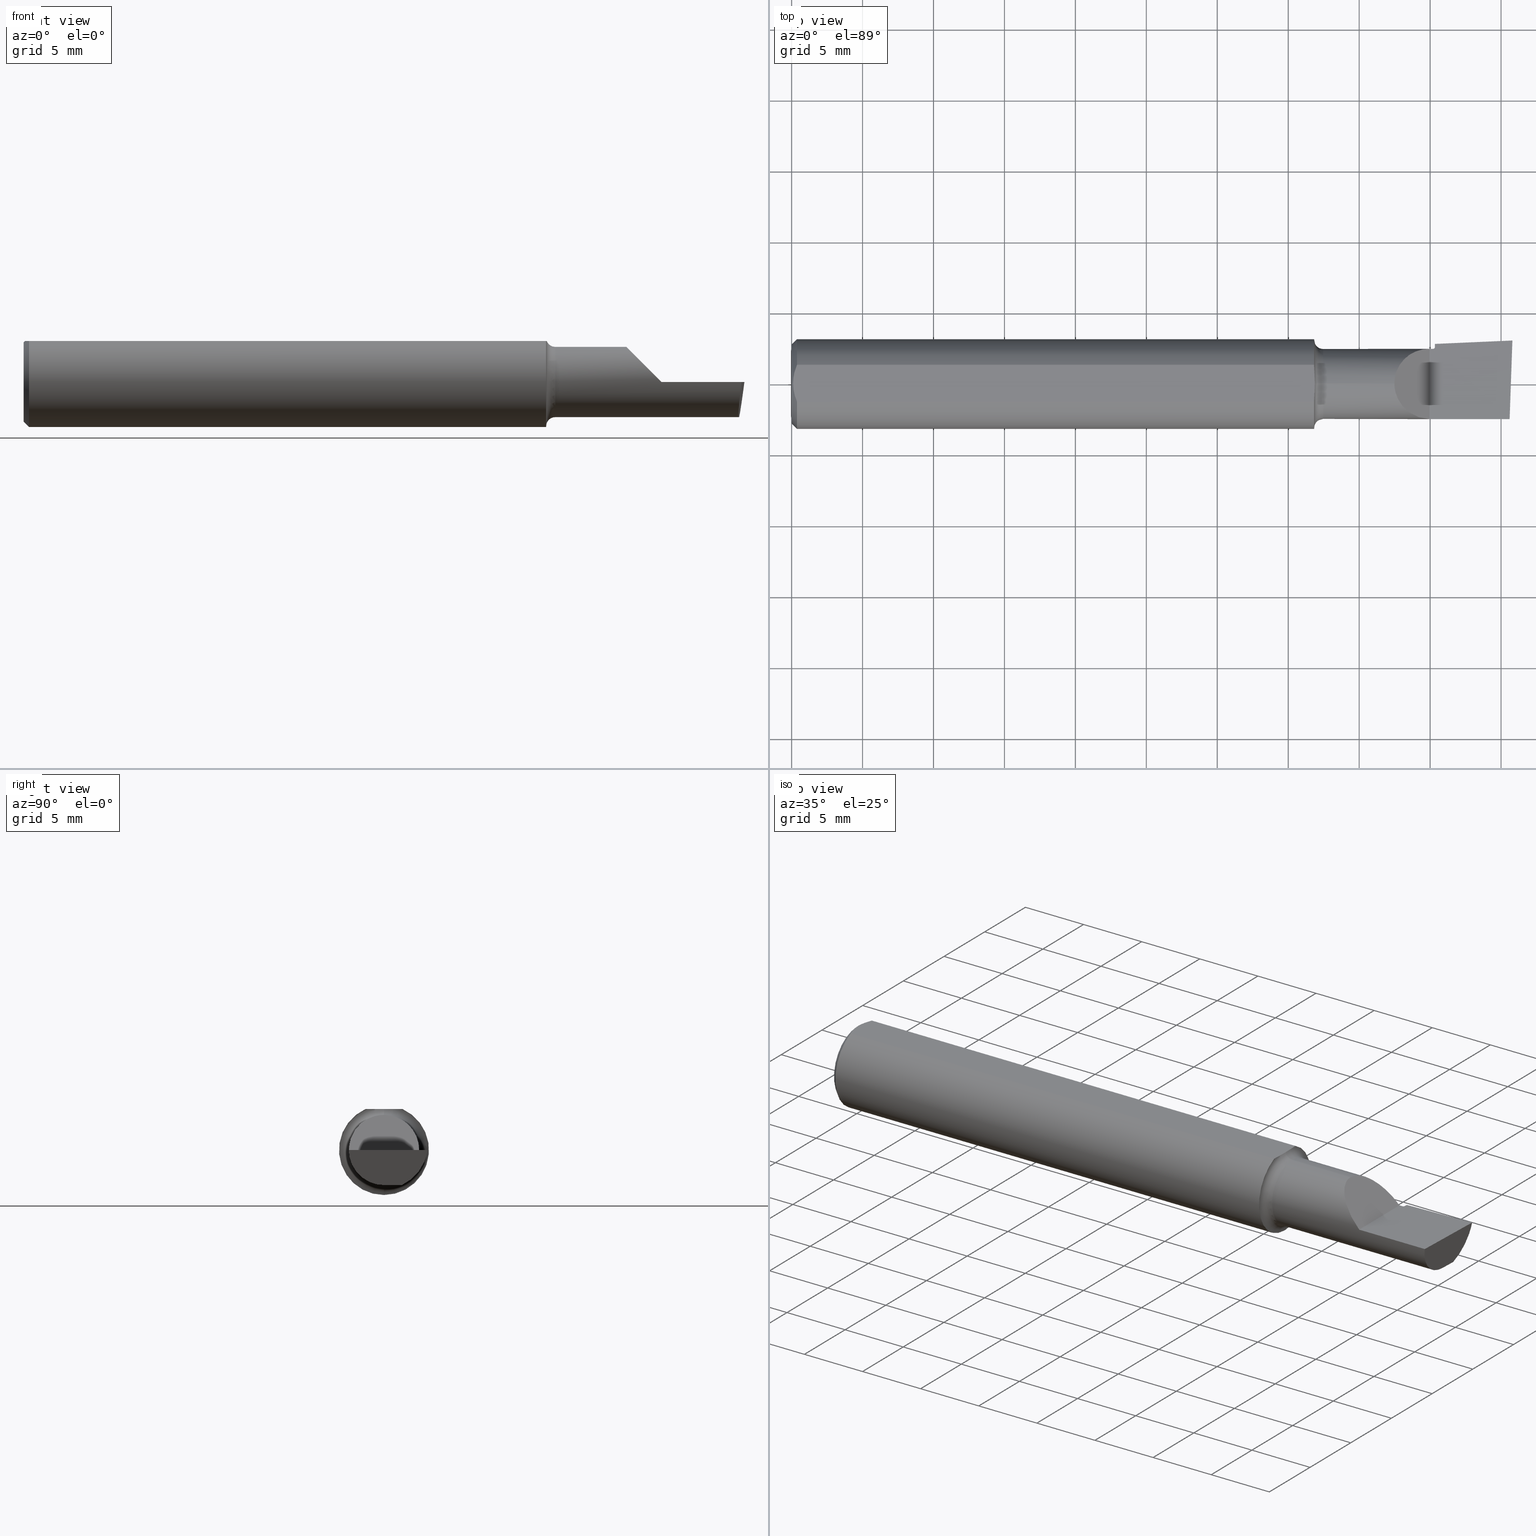
[diagram: canonical four-view strip — front | top / right | iso, engineering-drawing reading convention]
A machine part, canonical four-view strip (front | top / right | iso — engineering-drawing reading convention). The complete STEP part file that produces these views, byte-faithful:
ISO-10303-21;
HEADER;
FILE_DESCRIPTION (( 'STEP AP203' ),
    '1' );
FILE_NAME ('210264-BB224.STEP',
    '2024-04-17T22:28:02',
    ( '' ),
    ( '' ),
    'SwSTEP 2.0',
    'SolidWorks 2022',
    '' );
FILE_SCHEMA (( 'CONFIG_CONTROL_DESIGN' ));
ENDSEC;

DATA;
#1 = CARTESIAN_POINT ( 'NONE',  ( 1.981736911837515880, -0.05711417766862269402, -0.09750000000000021150 ) ) ;
#2 = DIMENSIONAL_EXPONENTS ( 1.000000000000000000, 0.000000000000000000, 0.000000000000000000, 0.000000000000000000, 0.000000000000000000, 0.000000000000000000, 0.000000000000000000 ) ;
#3 = ORIENTED_EDGE ( 'NONE', *, *, #495, .F. ) ;
#4 = CARTESIAN_POINT ( 'NONE',  ( 1.450000000000000178, 0.05124158467494929065, 0.1138500000000000068 ) ) ;
#5 = CARTESIAN_POINT ( 'NONE',  ( 3.021633225635175904E-31, 0.09750000000000000333, -7.773844898935373068E-16 ) ) ;
#6 = EDGE_CURVE ( 'NONE', #508, #244, #384, .T. ) ;
#7 = DIRECTION ( 'NONE',  ( 0.000000000000000000, -1.224646799147352714E-16, 1.000000000000000000 ) ) ;
#8 = LINE ( 'NONE', #392, #203 ) ;
#9 = AXIS2_PLACEMENT_3D ( 'NONE', #593, #106, #290 ) ;
#10 = CARTESIAN_POINT ( 'NONE',  ( 0.01500000000000161621, 0.000000000000000000, -0.1248500000000000026 ) ) ;
#11 = ORIENTED_EDGE ( 'NONE', *, *, #80, .T. ) ;
#12 = FACE_OUTER_BOUND ( 'NONE', #483, .T. ) ;
#13 = CARTESIAN_POINT ( 'NONE',  ( 1.865109836723367387, 0.1146629148157311123, -5.243076038523058513E-17 ) ) ;
#14 = EDGE_CURVE ( 'NONE', #297, #116, #494, .T. ) ;
#15 = CARTESIAN_POINT ( 'NONE',  ( 1.450000000000000178, 0.1225000000000000117, 0.000000000000000000 ) ) ;
#16 = PLANE ( 'NONE',  #110 ) ;
#17 = CIRCLE ( 'NONE', #430, 0.1225000000000000117 ) ;
#18 = CARTESIAN_POINT ( 'NONE',  ( 1.672500000000000320, -0.05711417766862324219, 0.09750000000000003109 ) ) ;
#19 = CARTESIAN_POINT ( 'NONE',  ( 1.951855142725193559, 0.04607182581063735960, -0.09749999999999994782 ) ) ;
#20 = EDGE_CURVE ( 'NONE', #92, #306, #8, .T. ) ;
#21 = CARTESIAN_POINT ( 'NONE',  ( 1.450000000000000178, -0.04521534584629426090, 0.1138500000000000068 ) ) ;
#22 = CARTESIAN_POINT ( 'NONE',  ( 1.450000000000000178, 0.05124158467494929065, 0.1138500000000000068 ) ) ;
#23 = VERTEX_POINT ( 'NONE', #61 ) ;
#24 = LINE ( 'NONE', #212, #438 ) ;
#25 = ORIENTED_EDGE ( 'NONE', *, *, #540, .F. ) ;
#26 = EDGE_CURVE ( 'NONE', #38, #23, #576, .T. ) ;
#27 = AXIS2_PLACEMENT_3D ( 'NONE', #15, #56, #397 ) ;
#28 = CARTESIAN_POINT ( 'NONE',  ( 1.985488503347493827, 0.04951655424516975684, -0.09749999999999996170 ) ) ;
#29 = ORIENTED_EDGE ( 'NONE', *, *, #6, .F. ) ;
#30 = LINE ( 'NONE', #261, #334 ) ;
#31 = CARTESIAN_POINT ( 'NONE',  ( 2.000000000000000444, 0.000000000000000000, 0.000000000000000000 ) ) ;
#32 = EDGE_CURVE ( 'NONE', #83, #141, #539, .T. ) ;
#33 = PERSON_AND_ORGANIZATION ( #168, #418 ) ;
#34 = DIRECTION ( 'NONE',  ( 0.000000000000000000, 0.000000000000000000, -1.000000000000000000 ) ) ;
#35 = APPROVAL_ROLE ( '' ) ;
#36 = CARTESIAN_POINT ( 'NONE',  ( 0.000000000000000000, 0.000000000000000000, -0.1098499999999982546 ) ) ;
#37 = AXIS2_PLACEMENT_3D ( 'NONE', #506, #257, #552 ) ;
#38 = VERTEX_POINT ( 'NONE', #585 ) ;
#39 = CC_DESIGN_PERSON_AND_ORGANIZATION_ASSIGNMENT ( #173, #414, ( #58 ) ) ;
#40 = APPROVAL_DATE_TIME ( #277, #259 ) ;
#41 = DIRECTION ( 'NONE',  ( 1.000000000000000000, -0.000000000000000000, -0.000000000000000000 ) ) ;
#42 = ORIENTED_EDGE ( 'NONE', *, *, #47, .F. ) ;
#43 = PERSON_AND_ORGANIZATION ( #168, #418 ) ;
#44 = CARTESIAN_POINT ( 'NONE',  ( 0.000000000000000000, 0.05124158467494929065, 0.1138500000000000068 ) ) ;
#45 = VERTEX_POINT ( 'NONE', #112 ) ;
#46 = APPLICATION_PROTOCOL_DEFINITION ( 'international standard', 'config_control_design', 1994, #230 ) ;
#47 = EDGE_CURVE ( 'NONE', #220, #237, #435, .T. ) ;
#48 = ORIENTED_EDGE ( 'NONE', *, *, #204, .T. ) ;
#49 = AXIS2_PLACEMENT_3D ( 'NONE', #315, #370, #73 ) ;
#50 = AXIS2_PLACEMENT_3D ( 'NONE', #343, #240, #99 ) ;
#51 = CARTESIAN_POINT ( 'NONE',  ( 1.780000000000000027, 3.722989503933402437E-16, -0.09749999999999996170 ) ) ;
#52 = ORIENTED_EDGE ( 'NONE', *, *, #155, .F. ) ;
#53 = EDGE_CURVE ( 'NONE', #574, #428, #151, .T. ) ;
#54 = CARTESIAN_POINT ( 'NONE',  ( 1.784431908937426536, 0.02303973337386209727, -0.09749999999999996170 ) ) ;
#55 = VERTEX_POINT ( 'NONE', #388 ) ;
#56 = DIRECTION ( 'NONE',  ( 1.000000000000000000, 0.000000000000000000, 0.000000000000000000 ) ) ;
#57 = CARTESIAN_POINT ( 'NONE',  ( 1.793453857359137649, 0.1115079347444489777, -8.028288386817234316E-17 ) ) ;
#58 = PRODUCT_DEFINITION ( 'UNKNOWN', '', #117, #74 ) ;
#59 = AXIS2_PLACEMENT_3D ( 'NONE', #462, #410, #82 ) ;
#60 = CARTESIAN_POINT ( 'NONE',  ( 0.000000000000000000, 0.000000000000000000, 0.000000000000000000 ) ) ;
#61 = CARTESIAN_POINT ( 'NONE',  ( 0.004000000000001717460, 1.393792698067675767E-17, 0.1138500000000000068 ) ) ;
#62 = CARTESIAN_POINT ( 'NONE',  ( 1.474999999999999867, 0.000000000000000000, 0.000000000000000000 ) ) ;
#63 = ORIENTED_EDGE ( 'NONE', *, *, #368, .F. ) ;
#64 = CARTESIAN_POINT ( 'NONE',  ( 1.450000000000000178, 0.03767470274412997727, 0.1138499999999999790 ) ) ;
#65 = CARTESIAN_POINT ( 'NONE',  ( 1.474999999999999867, 0.000000000000000000, 0.09750000000000000333 ) ) ;
#66 = ADVANCED_FACE ( 'NONE', ( #349 ), #16, .F. ) ;
#67 = AXIS2_PLACEMENT_3D ( 'NONE', #455, #262, #360 ) ;
#68 = VECTOR ( 'NONE', #529, 39.37007874015748143 ) ;
#69 = CARTESIAN_POINT ( 'NONE',  ( 1.451544137193443662, 0.000000000000000000, 0.1138500000000000068 ) ) ;
#70 = CARTESIAN_POINT ( 'NONE',  ( 1.451544137193443662, 0.000000000000000000, 0.1138500000000000068 ) ) ;
#71 = ADVANCED_FACE ( 'NONE', ( #202 ), #81, .T. ) ;
#72 = DIRECTION ( 'NONE',  ( 1.000000000000000000, 0.000000000000000000, 0.000000000000000000 ) ) ;
#73 = DIRECTION ( 'NONE',  ( 0.000000000000000000, 0.000000000000000000, -1.000000000000000000 ) ) ;
#74 = DESIGN_CONTEXT ( 'detailed design', #230, 'design' ) ;
#75 = ADVANCED_FACE ( 'NONE', ( #531 ), #208, .T. ) ;
#76 = CARTESIAN_POINT ( 'NONE',  ( 1.672500000000000764, 0.000000000000000000, 0.09750000000000000333 ) ) ;
#77 = CARTESIAN_POINT ( 'NONE',  ( 1.770000000000000240, -0.09749999999999971190, -8.939921633775677106E-17 ) ) ;
#78 = ORIENTED_EDGE ( 'NONE', *, *, #411, .T. ) ;
#79 = TOROIDAL_SURFACE ( 'NONE', #59, 0.1225000000000000117, 0.02499999999999993894 ) ;
#80 = EDGE_CURVE ( 'NONE', #45, #508, #322, .T. ) ;
#81 = CONICAL_SURFACE ( 'NONE', #289, 0.1248500000000000026, 0.7853981633974528309 ) ;
#82 = DIRECTION ( 'NONE',  ( 0.000000000000000000, 0.000000000000000000, 1.000000000000000000 ) ) ;
#83 = VERTEX_POINT ( 'NONE', #125 ) ;
#84 = DATE_AND_TIME ( #323, #582 ) ;
#85 = CARTESIAN_POINT ( 'NONE',  ( 0.01500000000000161621, 0.000000000000000000, 0.000000000000000000 ) ) ;
#86 = PERSON_AND_ORGANIZATION_ROLE ( 'design_owner' ) ;
#87 = PLANE ( 'NONE',  #383 ) ;
#88 = EDGE_CURVE ( 'NONE', #189, #534, #17, .T. ) ;
#89 = ORIENTED_EDGE ( 'NONE', *, *, #470, .F. ) ;
#90 = APPROVAL_DATE_TIME ( #139, #307 ) ;
#91 = CC_DESIGN_APPROVAL ( #259, ( #117 ) ) ;
#92 = VERTEX_POINT ( 'NONE', #318 ) ;
#93 = LOCAL_TIME ( 15, 28, 2.000000000000000000, #572 ) ;
#94 = DATE_AND_TIME ( #471, #194 ) ;
#95 = CARTESIAN_POINT ( 'NONE',  ( 1.992294917929013254, -0.09750000000000000333, -7.773844898935373068E-16 ) ) ;
#96 = ORIENTED_EDGE ( 'NONE', *, *, #137, .F. ) ;
#97 = DIRECTION ( 'NONE',  ( 0.000000000000000000, 0.000000000000000000, -1.000000000000000000 ) ) ;
#98 = ORIENTED_EDGE ( 'NONE', *, *, #276, .T. ) ;
#99 = DIRECTION ( 'NONE',  ( -1.000000000000000000, 0.000000000000000000, -3.886922449467621453E-16 ) ) ;
#100 = EDGE_CURVE ( 'NONE', #511, #237, #254, .T. ) ;
#101 = EDGE_LOOP ( 'NONE', ( #182, #354, #3, #443, #217, #536 ) ) ;
#102 = VECTOR ( 'NONE', #607, 39.37007874015748143 ) ;
#103 = VECTOR ( 'NONE', #358, 39.37007874015748143 ) ;
#104 = CARTESIAN_POINT ( 'NONE',  ( 1.450000000000000178, -0.04521534584629426090, 0.1138500000000000068 ) ) ;
#105 = CARTESIAN_POINT ( 'NONE',  ( 0.01167165678009124061, 0.04313208428301595898, 0.1138500000000000068 ) ) ;
#106 = DIRECTION ( 'NONE',  ( 1.000000000000000000, 1.216526059678616922E-16, -0.000000000000000000 ) ) ;
#107 = ORIENTED_EDGE ( 'NONE', *, *, #550, .F. ) ;
#108 = CARTESIAN_POINT ( 'NONE',  ( 1.780000000000000027, 0.09750000000000000333, -7.773844898935373068E-16 ) ) ;
#109 = CARTESIAN_POINT ( 'NONE',  ( -3.937007874019685528E-05, 3.670920741486353638E-16, -0.09749999999999996170 ) ) ;
#110 = AXIS2_PLACEMENT_3D ( 'NONE', #109, #300, #490 ) ;
#111 = CARTESIAN_POINT ( 'NONE',  ( 1.785000000000055209, 0.06762837049655040511, -0.07668285397018434479 ) ) ;
#112 = CARTESIAN_POINT ( 'NONE',  ( 1.985488503347493827, 0.04951655424516975684, -0.09749999999999996170 ) ) ;
#113 = DIRECTION ( 'NONE',  ( 1.000000000000000000, 1.790984261580658209E-17, -1.886503422198224724E-16 ) ) ;
#114 = DIRECTION ( 'NONE',  ( 0.000000000000000000, 0.000000000000000000, 1.000000000000000000 ) ) ;
#115 = CARTESIAN_POINT ( 'NONE',  ( 1.785000000000000142, 0.1025000000000000633, -8.356883266355525457E-17 ) ) ;
#116 = VERTEX_POINT ( 'NONE', #65 ) ;
#117 = PRODUCT_DEFINITION_FORMATION_WITH_SPECIFIED_SOURCE ( 'ANY', '', #320, .NOT_KNOWN. ) ;
#118 = CIRCLE ( 'NONE', #611, 0.1248500000000000026 ) ;
#119 = CARTESIAN_POINT ( 'NONE',  ( 1.451544137193443662, 0.003725360303307010627, 0.1138500000000000068 ) ) ;
#120 = CARTESIAN_POINT ( 'NONE',  ( 0.01500000000000161621, 1.528971528735470422E-17, 0.1248500000000000026 ) ) ;
#121 = ORIENTED_EDGE ( 'NONE', *, *, #411, .F. ) ;
#122 = LINE ( 'NONE', #120, #102 ) ;
#123 = ORIENTED_EDGE ( 'NONE', *, *, #20, .T. ) ;
#124 = ADVANCED_FACE ( 'NONE', ( #161 ), #79, .F. ) ;
#125 = CARTESIAN_POINT ( 'NONE',  ( 1.992294917929013254, -0.09750000000000000333, -7.773844898935373068E-16 ) ) ;
#126 = AXIS2_PLACEMENT_3D ( 'NONE', #60, #535, #444 ) ;
#127 = APPROVAL_PERSON_ORGANIZATION ( #609, #485, #382 ) ;
#128 = CARTESIAN_POINT ( 'NONE',  ( 1.784431908937426536, 0.02303973337386209727, -0.09749999999999996170 ) ) ;
#129 = DIRECTION ( 'NONE',  ( 0.000000000000000000, -1.000000000000000000, 0.000000000000000000 ) ) ;
#130 = VERTEX_POINT ( 'NONE', #459 ) ;
#131 = COORDINATED_UNIVERSAL_TIME_OFFSET ( 8, 0, .BEHIND. ) ;
#132 = DIRECTION ( 'NONE',  ( -1.000000000000000000, -0.000000000000000000, -0.000000000000000000 ) ) ;
#133 = ORIENTED_EDGE ( 'NONE', *, *, #605, .T. ) ;
#134 = APPROVAL_STATUS ( 'not_yet_approved' ) ;
#135 = CARTESIAN_POINT ( 'NONE',  ( 0.01168357029558645885, -0.04316111153536574679, 0.1138500000000000068 ) ) ;
#136 = AXIS2_PLACEMENT_3D ( 'NONE', #538, #579, #145 ) ;
#137 = EDGE_CURVE ( 'NONE', #378, #189, #266, .T. ) ;
#138 = AXIS2_PLACEMENT_3D ( 'NONE', #491, #489, #152 ) ;
#139 = DATE_AND_TIME ( #518, #205 ) ;
#140 = CARTESIAN_POINT ( 'NONE',  ( 1.785000000000000142, 0.1111356925928525391, -8.323599355695802456E-17 ) ) ;
#141 = VERTEX_POINT ( 'NONE', #77 ) ;
#142 = EDGE_CURVE ( 'NONE', #130, #23, #122, .T. ) ;
#143 = DIRECTION ( 'NONE',  ( 1.000000000000000000, -0.000000000000000000, -0.000000000000000000 ) ) ;
#144 = EDGE_LOOP ( 'NONE', ( #616, #319, #179, #453, #89 ) ) ;
#145 = DIRECTION ( 'NONE',  ( 0.000000000000000000, 0.000000000000000000, 1.000000000000000000 ) ) ;
#146 = DIRECTION ( 'NONE',  ( 1.000000000000000000, -0.000000000000000000, -0.000000000000000000 ) ) ;
#147 = CLOSED_SHELL ( 'NONE', ( #75, #450, #71, #556, #324, #187, #246, #584, #252, #124, #433, #269, #530, #66, #295, #223, #350 ) ) ;
#148 = DIRECTION ( 'NONE',  ( -0.7071067811865461294, 0.000000000000000000, 0.7071067811865487940 ) ) ;
#149 = CARTESIAN_POINT ( 'NONE',  ( 1.789226928511898240, 0.1113218174764034063, -8.192585833103609722E-17 ) ) ;
#150 = LINE ( 'NONE', #247, #163 ) ;
#151 = LINE ( 'NONE', #5, #333 ) ;
#152 = DIRECTION ( 'NONE',  ( 0.000000000000000000, 0.000000000000000000, 1.000000000000000000 ) ) ;
#153 = CARTESIAN_POINT ( 'NONE',  ( 0.01500000000000161621, 0.05124158467494929065, 0.1138500000000000068 ) ) ;
#154 = B_SPLINE_CURVE_WITH_KNOTS ( 'NONE', 3,
 ( #128, #544, #500, #403, #206, #549, #19, #312 ),
 .UNSPECIFIED., .F., .F.,
 ( 4, 2, 2, 4 ),
 ( 0.01279290492919137219, 0.01409157974680893578, 0.01539025456442649764, 0.01798760419966162483 ),
 .UNSPECIFIED. ) ;
#155 = EDGE_CURVE ( 'NONE', #574, #141, #271, .T. ) ;
#156 = CIRCLE ( 'NONE', #138, 0.09750000000000000333 ) ;
#157 = CARTESIAN_POINT ( 'NONE',  ( 0.01500000000000161621, 0.000000000000000000, 0.000000000000000000 ) ) ;
#158 = CARTESIAN_POINT ( 'NONE',  ( 1.450000000000000178, 0.04521534584629426090, 0.1138500000000000068 ) ) ;
#159 = DIRECTION ( 'NONE',  ( 0.000000000000000000, -1.000000000000000000, 0.000000000000000000 ) ) ;
#160 = DIRECTION ( 'NONE',  ( 0.000000000000000000, 0.000000000000000000, -1.000000000000000000 ) ) ;
#161 = FACE_OUTER_BOUND ( 'NONE', #304, .T. ) ;
#162 = VERTEX_POINT ( 'NONE', #115 ) ;
#163 = VECTOR ( 'NONE', #293, 39.37007874015748143 ) ;
#164 = CC_DESIGN_APPROVAL ( #307, ( #546 ) ) ;
#165 = CARTESIAN_POINT ( 'NONE',  ( 1.451217750162281162, 0.01507525941000600889, 0.1138500000000000068 ) ) ;
#166 = FACE_OUTER_BOUND ( 'NONE', #542, .T. ) ;
#167 = ORIENTED_EDGE ( 'NONE', *, *, #458, .T. ) ;
#168 = PERSON ( 'UNSPECIFIED', 'UNSPECIFIED', 'UNSPECIFIED', ('UNSPECIFIED'), ('UNSPECIFIED'), ('UNSPECIFIED') ) ;
#169 =( NAMED_UNIT ( * ) SI_UNIT ( $, .STERADIAN. ) SOLID_ANGLE_UNIT ( ) );
#170 = CARTESIAN_POINT ( 'NONE',  ( 1.770000000000000240, 1.220000000000000195, -8.939921633775677106E-17 ) ) ;
#171 = DIRECTION ( 'NONE',  ( 0.000000000000000000, 0.000000000000000000, 1.000000000000000000 ) ) ;
#172 = DIRECTION ( 'NONE',  ( -0.000000000000000000, -1.000000000000000000, -0.000000000000000000 ) ) ;
#173 = PERSON_AND_ORGANIZATION ( #168, #418 ) ;
#174 = AXIS2_PLACEMENT_3D ( 'NONE', #282, #143, #468 ) ;
#175 = CARTESIAN_POINT ( 'NONE',  ( 0.000000000000000000, 0.000000000000000000, 0.000000000000000000 ) ) ;
#176 = ORIENTED_EDGE ( 'NONE', *, *, #232, .T. ) ;
#177 = CARTESIAN_POINT ( 'NONE',  ( 1.672500000000000764, 0.000000000000000000, 0.09750000000000000333 ) ) ;
#178 = EDGE_CURVE ( 'NONE', #316, #162, #497, .T. ) ;
#179 = ORIENTED_EDGE ( 'NONE', *, *, #26, .F. ) ;
#180 = PRODUCT_DEFINITION_SHAPE ( 'NONE', 'NONE',  #58 ) ;
#181 = CARTESIAN_POINT ( 'NONE',  ( 0.004000000000001641999, -0.008823500054840109630, 0.1138500000000000068 ) ) ;
#182 = ORIENTED_EDGE ( 'NONE', *, *, #426, .T. ) ;
#183 = CALENDAR_DATE ( 2024, 17, 4 ) ;
#184 = DIRECTION ( 'NONE',  ( 1.000000000000000000, -0.000000000000000000, -0.000000000000000000 ) ) ;
#185 = CIRCLE ( 'NONE', #214, 0.1248500000000000026 ) ;
#186 = ORIENTED_EDGE ( 'NONE', *, *, #340, .T. ) ;
#187 = ADVANCED_FACE ( 'NONE', ( #366 ), #325, .T. ) ;
#188 = CARTESIAN_POINT ( 'NONE',  ( 0.000000000000000000, 0.05124158467494929065, 0.1138500000000000068 ) ) ;
#189 = VERTEX_POINT ( 'NONE', #219 ) ;
#190 = FACE_OUTER_BOUND ( 'NONE', #336, .T. ) ;
#191 = VERTEX_POINT ( 'NONE', #70 ) ;
#192 = CC_DESIGN_PERSON_AND_ORGANIZATION_ASSIGNMENT ( #221, #86, ( #320 ) ) ;
#193 = CARTESIAN_POINT ( 'NONE',  ( 1.780000000000000027, 0.000000000000000000, 0.000000000000000000 ) ) ;
#194 = LOCAL_TIME ( 15, 28, 2.000000000000000000, #419 ) ;
#195 = ORIENTED_EDGE ( 'NONE', *, *, #361, .T. ) ;
#196 = AXIS2_PLACEMENT_3D ( 'NONE', #284, #171, #618 ) ;
#197 = CARTESIAN_POINT ( 'NONE',  ( 1.781727325597548317, 0.007627962907832559411, -0.09749999999999998945 ) ) ;
#198 = CARTESIAN_POINT ( 'NONE',  ( 0.005042108978870534983, 0.01754746848146375438, 0.1138499999999999790 ) ) ;
#199 = DIRECTION ( 'NONE',  ( -1.000000000000000000, -0.000000000000000000, -0.000000000000000000 ) ) ;
#200 = EDGE_CURVE ( 'NONE', #130, #286, #558, .T. ) ;
#201 = ORIENTED_EDGE ( 'NONE', *, *, #340, .F. ) ;
#202 = FACE_OUTER_BOUND ( 'NONE', #144, .T. ) ;
#203 = VECTOR ( 'NONE', #113, 39.37007874015748143 ) ;
#204 = EDGE_CURVE ( 'NONE', #55, #45, #154, .T. ) ;
#205 = LOCAL_TIME ( 15, 28, 2.000000000000000000, #523 ) ;
#206 = CARTESIAN_POINT ( 'NONE',  ( 1.867915088960057979, 0.03604975157657223928, -0.09749999999999996170 ) ) ;
#207 = DIRECTION ( 'NONE',  ( -1.000000000000000000, 0.000000000000000000, -0.000000000000000000 ) ) ;
#208 = CYLINDRICAL_SURFACE ( 'NONE', #37, 0.09750000000000000333 ) ;
#209 = ORIENTED_EDGE ( 'NONE', *, *, #368, .T. ) ;
#210 = EDGE_CURVE ( 'NONE', #83, #508, #24, .T. ) ;
#211 = B_SPLINE_CURVE_WITH_KNOTS ( 'NONE', 3,
 ( #442, #111, #439, #299, #588, #54 ),
 .UNSPECIFIED., .F., .F.,
 ( 4, 2, 4 ),
 ( 0.001235810349963047854, 0.001994775500586429794, 0.002753740651209811516 ),
 .UNSPECIFIED. ) ;
#212 = CARTESIAN_POINT ( 'NONE',  ( 2.038600769162305593, 1.218641908244754601, 1.500381962236843253E-17 ) ) ;
#213 = ORIENTED_EDGE ( 'NONE', *, *, #477, .F. ) ;
#214 = AXIS2_PLACEMENT_3D ( 'NONE', #222, #274, #610 ) ;
#215 = FACE_OUTER_BOUND ( 'NONE', #612, .T. ) ;
#216 = CARTESIAN_POINT ( 'NONE',  ( 1.450000000000000178, 0.05124158467494929065, 0.1138500000000000068 ) ) ;
#217 = ORIENTED_EDGE ( 'NONE', *, *, #242, .T. ) ;
#218 = LENGTH_MEASURE_WITH_UNIT ( LENGTH_MEASURE( 0.02539999999999999897 ), #493 );
#219 = CARTESIAN_POINT ( 'NONE',  ( 1.450000000000000178, 0.04521534584629426090, 0.1138500000000000068 ) ) ;
#220 = VERTEX_POINT ( 'NONE', #601 ) ;
#221 = PERSON_AND_ORGANIZATION ( #168, #418 ) ;
#222 = CARTESIAN_POINT ( 'NONE',  ( 1.450000000000000178, 0.000000000000000000, 0.000000000000000000 ) ) ;
#223 = ADVANCED_FACE ( 'NONE', ( #166 ), #234, .F. ) ;
#224 = CIRCLE ( 'NONE', #50, 0.005000000000000083371 ) ;
#225 = FACE_OUTER_BOUND ( 'NONE', #339, .T. ) ;
#226 = ORIENTED_EDGE ( 'NONE', *, *, #562, .F. ) ;
#227 = DATE_AND_TIME ( #464, #93 ) ;
#228 = FACE_OUTER_BOUND ( 'NONE', #577, .T. ) ;
#229 = ORIENTED_EDGE ( 'NONE', *, *, #6, .T. ) ;
#230 = APPLICATION_CONTEXT ( 'configuration controlled 3d designs of mechanical parts and assemblies' ) ;
#231 = CYLINDRICAL_SURFACE ( 'NONE', #528, 0.09750000000000000333 ) ;
#232 = EDGE_CURVE ( 'NONE', #237, #378, #185, .T. ) ;
#233 = EDGE_LOOP ( 'NONE', ( #525, #123, #475, #272, #432, #520, #121 ) ) ;
#234 = TOROIDAL_SURFACE ( 'NONE', #321, 0.1024999999999999939, 0.005000000000000000104 ) ;
#235 = CARTESIAN_POINT ( 'NONE',  ( 1.985277839943183853, -0.09749999999999961475, -0.05711417766862378342 ) ) ;
#236 = AXIS2_PLACEMENT_3D ( 'NONE', #365, #543, #114 ) ;
#237 = VERTEX_POINT ( 'NONE', #573 ) ;
#238 = CARTESIAN_POINT ( 'NONE',  ( 1.983746361272920922, 3.672515324128580088E-16, -0.09749999999999998945 ) ) ;
#239 = CARTESIAN_POINT ( 'NONE',  ( 0.000000000000000000, 0.000000000000000000, 0.09750000000000000333 ) ) ;
#240 = DIRECTION ( 'NONE',  ( 3.886922449467686041E-16, 0.000000000000000000, -1.000000000000000000 ) ) ;
#241 = DIRECTION ( 'NONE',  ( -1.000000000000000000, -0.000000000000000000, -0.000000000000000000 ) ) ;
#242 = EDGE_CURVE ( 'NONE', #297, #574, #248, .T. ) ;
#243 = CARTESIAN_POINT ( 'NONE',  ( 0.01500000000000161621, 0.000000000000000000, -0.1248500000000000026 ) ) ;
#244 = VERTEX_POINT ( 'NONE', #140 ) ;
#245 = CIRCLE ( 'NONE', #417, 0.02499999999999993894 ) ;
#246 = ADVANCED_FACE ( 'NONE', ( #474 ), #515, .F. ) ;
#247 = CARTESIAN_POINT ( 'NONE',  ( 0.000000000000000000, 1.194030629168669352E-17, -0.09750000000000000333 ) ) ;
#248 =( BOUNDED_CURVE ( )  B_SPLINE_CURVE ( 3, ( #177, #285, #415, #420 ),
 .UNSPECIFIED., .F., .T. ) 
 B_SPLINE_CURVE_WITH_KNOTS ( ( 4, 4 ),
 ( 0.000000000000000000, 1.570796326794897002 ),
 .UNSPECIFIED. ) 
 CURVE ( )  GEOMETRIC_REPRESENTATION_ITEM ( )  RATIONAL_B_SPLINE_CURVE ( ( 1.000000000000000000, 0.8047378541243649375, 0.8047378541243649375, 1.000000000000000000 ) ) 
 REPRESENTATION_ITEM ( '' )  );
#249 = CARTESIAN_POINT ( 'NONE',  ( 1.784431908937426536, 0.02303973337386209727, -0.09749999999999996170 ) ) ;
#250 =( BOUNDED_CURVE ( )  B_SPLINE_CURVE ( 3, ( #446, #502, #18, #76 ),
 .UNSPECIFIED., .F., .T. ) 
 B_SPLINE_CURVE_WITH_KNOTS ( ( 4, 4 ),
 ( 4.712388980384689674, 6.283185307179586232 ),
 .UNSPECIFIED. ) 
 CURVE ( )  GEOMETRIC_REPRESENTATION_ITEM ( )  RATIONAL_B_SPLINE_CURVE ( ( 1.000000000000000000, 0.8047378541243649375, 0.8047378541243649375, 1.000000000000000000 ) ) 
 REPRESENTATION_ITEM ( '' )  );
#251 = VERTEX_POINT ( 'NONE', #386 ) ;
#252 = ADVANCED_FACE ( 'NONE', ( #225 ), #447, .T. ) ;
#253 = CARTESIAN_POINT ( 'NONE',  ( 0.000000000000000000, 0.000000000000000000, 0.000000000000000000 ) ) ;
#254 = LINE ( 'NONE', #216, #480 ) ;
#255 = VECTOR ( 'NONE', #580, 39.37007874015748143 ) ;
#256 = FACE_OUTER_BOUND ( 'NONE', #381, .T. ) ;
#257 = DIRECTION ( 'NONE',  ( -1.000000000000000000, -0.000000000000000000, -0.000000000000000000 ) ) ;
#258 = UNCERTAINTY_MEASURE_WITH_UNIT (LENGTH_MEASURE( 1.000000000000000082E-05 ), #264, 'distance_accuracy_value', 'NONE');
#259 = APPROVAL ( #369, 'UNSPECIFIED' ) ;
#260 = ORIENTED_EDGE ( 'NONE', *, *, #317, .F. ) ;
#261 = CARTESIAN_POINT ( 'NONE',  ( 1.785000000000000142, 1.220000000000000195, -8.356883266355525457E-17 ) ) ;
#262 = DIRECTION ( 'NONE',  ( 1.000000000000000000, 0.000000000000000000, 0.000000000000000000 ) ) ;
#263 = ORIENTED_EDGE ( 'NONE', *, *, #562, .T. ) ;
#264 =( CONVERSION_BASED_UNIT ( 'INCH', #218 ) LENGTH_UNIT ( ) NAMED_UNIT ( #2 ) );
#265 = B_SPLINE_CURVE_WITH_KNOTS ( 'NONE', 3,
 ( #158, #64, #595, #505, #165, #402, #119, #69 ),
 .UNSPECIFIED., .F., .F.,
 ( 4, 2, 2, 4 ),
 ( 0.009494034402465429193, 0.01006153212559411300, 0.01034528098715845404, 0.01062902984872279508 ),
 .UNSPECIFIED. ) ;
#266 = LINE ( 'NONE', #22, #507 ) ;
#267 = EDGE_LOOP ( 'NONE', ( #404, #551, #385, #565, #176 ) ) ;
#268 = VECTOR ( 'NONE', #394, 39.37007874015748143 ) ;
#269 = ADVANCED_FACE ( 'NONE', ( #377 ), #231, .T. ) ;
#270 = DIRECTION ( 'NONE',  ( 0.000000000000000000, -2.662907604651378062E-15, 1.000000000000000000 ) ) ;
#271 = LINE ( 'NONE', #170, #429 ) ;
#272 = ORIENTED_EDGE ( 'NONE', *, *, #32, .T. ) ;
#273 = DATE_TIME_ROLE ( 'creation_date' ) ;
#274 = DIRECTION ( 'NONE',  ( 1.000000000000000000, 0.000000000000000000, 0.000000000000000000 ) ) ;
#275 = ORIENTED_EDGE ( 'NONE', *, *, #80, .F. ) ;
#276 = EDGE_CURVE ( 'NONE', #38, #378, #519, .T. ) ;
#277 = DATE_AND_TIME ( #183, #581 ) ;
#278 = DIRECTION ( 'NONE',  ( -0.000000000000000000, 0.000000000000000000, -1.000000000000000000 ) ) ;
#279 = ORIENTED_EDGE ( 'NONE', *, *, #178, .F. ) ;
#280 = APPROVAL_ROLE ( '' ) ;
#281 = CONICAL_SURFACE ( 'NONE', #9, 0.1140847642728698291, 0.04363323129986666771 ) ;
#282 = CARTESIAN_POINT ( 'NONE',  ( 0.01500000000000161621, 0.000000000000000000, 0.000000000000000000 ) ) ;
#283 = ORIENTED_EDGE ( 'NONE', *, *, #242, .F. ) ;
#284 = CARTESIAN_POINT ( 'NONE',  ( 0.000000000000000000, 0.000000000000000000, 0.000000000000000000 ) ) ;
#285 = CARTESIAN_POINT ( 'NONE',  ( 1.672500000000000320, 0.05711417766862324219, 0.09750000000000003109 ) ) ;
#286 = VERTEX_POINT ( 'NONE', #36 ) ;
#287 = CARTESIAN_POINT ( 'NONE',  ( 2.000000000000000444, 1.220000000000000195, 0.000000000000000000 ) ) ;
#288 = ORIENTED_EDGE ( 'NONE', *, *, #570, .T. ) ;
#289 = AXIS2_PLACEMENT_3D ( 'NONE', #157, #146, #345 ) ;
#290 = DIRECTION ( 'NONE',  ( 0.000000000000000000, 1.000000000000000000, 0.000000000000000000 ) ) ;
#291 =( GEOMETRIC_REPRESENTATION_CONTEXT ( 3 ) GLOBAL_UNCERTAINTY_ASSIGNED_CONTEXT ( ( #258 ) ) GLOBAL_UNIT_ASSIGNED_CONTEXT ( ( #264, #405, #169 ) ) REPRESENTATION_CONTEXT ( 'NONE', 'WORKASPACE' ) );
#292 = ORIENTED_EDGE ( 'NONE', *, *, #361, .F. ) ;
#293 = DIRECTION ( 'NONE',  ( -1.000000000000000000, -0.000000000000000000, -0.000000000000000000 ) ) ;
#294 = CARTESIAN_POINT ( 'NONE',  ( 3.021633225635175904E-31, -0.09750000000000000333, -7.773844898935373068E-16 ) ) ;
#295 = ADVANCED_FACE ( 'NONE', ( #228 ), #87, .F. ) ;
#296 = CARTESIAN_POINT ( 'NONE',  ( 1.474999999999999867, 1.500192328955507747E-17, -0.1225000000000000117 ) ) ;
#297 = VERTEX_POINT ( 'NONE', #510 ) ;
#298 = B_SPLINE_CURVE_WITH_KNOTS ( 'NONE', 3,
 ( #586, #348, #351, #547, #496, #21 ),
 .UNSPECIFIED., .F., .F.,
 ( 4, 2, 4 ),
 ( 0.000000000000000000, 0.0005745634997278532222, 0.001149126999455706228 ),
 .UNSPECIFIED. ) ;
#299 = CARTESIAN_POINT ( 'NONE',  ( 1.784555292947914706, 0.04205648935182158127, -0.09170086078388910156 ) ) ;
#300 = DIRECTION ( 'NONE',  ( 0.000000000000000000, -0.000000000000000000, 1.000000000000000000 ) ) ;
#301 = AXIS2_PLACEMENT_3D ( 'NONE', #193, #395, #303 ) ;
#302 = EDGE_CURVE ( 'NONE', #545, #38, #118, .T. ) ;
#303 = DIRECTION ( 'NONE',  ( 0.000000000000000000, 0.000000000000000000, 1.000000000000000000 ) ) ;
#304 = EDGE_LOOP ( 'NONE', ( #292, #313, #371, #469, #424 ) ) ;
#305 = DIRECTION ( 'NONE',  ( 1.000000000000000000, -0.000000000000000000, -0.000000000000000000 ) ) ;
#306 = VERTEX_POINT ( 'NONE', #423 ) ;
#307 = APPROVAL ( #134, 'UNSPECIFIED' ) ;
#308 = DIRECTION ( 'NONE',  ( 0.000000000000000000, 0.000000000000000000, 1.000000000000000000 ) ) ;
#309 = EDGE_LOOP ( 'NONE', ( #367, #48, #288, #589 ) ) ;
#310 = AXIS2_PLACEMENT_3D ( 'NONE', #314, #305, #160 ) ;
#311 = PLANE ( 'NONE',  #399 ) ;
#312 = CARTESIAN_POINT ( 'NONE',  ( 1.985488503347493827, 0.04951655424516975684, -0.09749999999999996170 ) ) ;
#313 = ORIENTED_EDGE ( 'NONE', *, *, #88, .F. ) ;
#314 = CARTESIAN_POINT ( 'NONE',  ( 0.01500000000000161621, 0.000000000000000000, 0.000000000000000000 ) ) ;
#315 = CARTESIAN_POINT ( 'NONE',  ( 0.000000000000000000, 0.000000000000000000, 0.000000000000000000 ) ) ;
#316 = VERTEX_POINT ( 'NONE', #338 ) ;
#317 = EDGE_CURVE ( 'NONE', #191, #116, #245, .T. ) ;
#318 = CARTESIAN_POINT ( 'NONE',  ( 1.780000000000000027, 3.722989503933402437E-16, -0.09749999999999996170 ) ) ;
#319 = ORIENTED_EDGE ( 'NONE', *, *, #142, .T. ) ;
#320 = PRODUCT ( '210264-BB224', '210264-BB224', '', ( #379 ) ) ;
#321 = AXIS2_PLACEMENT_3D ( 'NONE', #524, #575, #427 ) ;
#322 =( BOUNDED_CURVE ( )  B_SPLINE_CURVE ( 3, ( #28, #452, #503, #413 ),
 .UNSPECIFIED., .F., .T. ) 
 B_SPLINE_CURVE_WITH_KNOTS ( ( 4, 4 ),
 ( 3.857216710315419128, 4.865487188745961866 ),
 .UNSPECIFIED. ) 
 CURVE ( )  GEOMETRIC_REPRESENTATION_ITEM ( )  RATIONAL_B_SPLINE_CURVE ( ( 1.000000000000000000, 0.9170616832287904474, 0.9170616832287904474, 1.000000000000000000 ) ) 
 REPRESENTATION_ITEM ( '' )  );
#323 = CALENDAR_DATE ( 2024, 17, 4 ) ;
#324 = ADVANCED_FACE ( 'NONE', ( #327 ), #615, .F. ) ;
#325 = CYLINDRICAL_SURFACE ( 'NONE', #389, 0.1248500000000000026 ) ;
#326 = ORIENTED_EDGE ( 'NONE', *, *, #458, .F. ) ;
#327 = FACE_OUTER_BOUND ( 'NONE', #463, .T. ) ;
#328 = ORIENTED_EDGE ( 'NONE', *, *, #210, .T. ) ;
#329 = APPROVAL_STATUS ( 'not_yet_approved' ) ;
#330 = CC_DESIGN_DATE_AND_TIME_ASSIGNMENT ( #94, #273, ( #58 ) ) ;
#331 = ORIENTED_EDGE ( 'NONE', *, *, #477, .T. ) ;
#332 = COORDINATED_UNIVERSAL_TIME_OFFSET ( 8, 0, .BEHIND. ) ;
#333 = VECTOR ( 'NONE', #445, 39.37007874015748143 ) ;
#334 = VECTOR ( 'NONE', #355, 39.37007874015748143 ) ;
#335 = FACE_OUTER_BOUND ( 'NONE', #516, .T. ) ;
#336 = EDGE_LOOP ( 'NONE', ( #478, #195, #78, #260, #513 ) ) ;
#337 = DATE_TIME_ROLE ( 'classification_date' ) ;
#338 = CARTESIAN_POINT ( 'NONE',  ( 1.785000000000003029, 0.07492595557701602071, -0.06994534424013437723 ) ) ;
#339 = EDGE_LOOP ( 'NONE', ( #357, #63, #421, #226, #201 ) ) ;
#340 = EDGE_CURVE ( 'NONE', #23, #220, #521, .T. ) ;
#341 = EDGE_CURVE ( 'NONE', #83, #306, #532, .T. ) ;
#342 = CARTESIAN_POINT ( 'NONE',  ( 1.999968171209103529, 0.1205953366697382900, 2.106509079813542075E-19 ) ) ;
#343 = CARTESIAN_POINT ( 'NONE',  ( 1.780000000000000027, 0.1024999999999999939, 0.000000000000000000 ) ) ;
#344 = CC_DESIGN_APPROVAL ( #485, ( #58 ) ) ;
#345 = DIRECTION ( 'NONE',  ( 0.000000000000000000, 0.000000000000000000, -1.000000000000000000 ) ) ;
#346 = CARTESIAN_POINT ( 'NONE',  ( 1.450000000000000178, 1.500192328955507747E-17, -0.1225000000000000117 ) ) ;
#347 = EDGE_LOOP ( 'NONE', ( #473, #42, #263, #387, #98 ) ) ;
#348 = CARTESIAN_POINT ( 'NONE',  ( 1.451544137193444106, -0.007543487722962840397, 0.1138500000000000206 ) ) ;
#349 = FACE_OUTER_BOUND ( 'NONE', #309, .T. ) ;
#350 = ADVANCED_FACE ( 'NONE', ( #335 ), #281, .T. ) ;
#351 = CARTESIAN_POINT ( 'NONE',  ( 1.451230423267105385, -0.01507771510623031989, 0.1138500000000000206 ) ) ;
#352 = CARTESIAN_POINT ( 'NONE',  ( 0.008865958875318083812, 0.03465827226192197408, 0.1138500000000000206 ) ) ;
#353 = APPLICATION_PROTOCOL_DEFINITION ( 'international standard', 'config_control_design', 1994, #448 ) ;
#354 = ORIENTED_EDGE ( 'NONE', *, *, #522, .T. ) ;
#355 = DIRECTION ( 'NONE',  ( 0.000000000000000000, 1.000000000000000000, 0.000000000000000000 ) ) ;
#356 = DIRECTION ( 'NONE',  ( 0.000000000000000000, -1.000000000000000000, 0.000000000000000000 ) ) ;
#357 = ORIENTED_EDGE ( 'NONE', *, *, #142, .F. ) ;
#358 = DIRECTION ( 'NONE',  ( -0.03516126778371352762, -0.9993816514464540779, 0.000000000000000000 ) ) ;
#359 = CIRCLE ( 'NONE', #236, 0.1225000000000000117 ) ;
#360 = DIRECTION ( 'NONE',  ( 0.000000000000000000, 0.000000000000000000, 1.000000000000000000 ) ) ;
#361 = EDGE_CURVE ( 'NONE', #534, #251, #363, .T. ) ;
#362 = ORIENTED_EDGE ( 'NONE', *, *, #276, .F. ) ;
#363 = CIRCLE ( 'NONE', #517, 0.02499999999999993894 ) ;
#364 = AXIS2_PLACEMENT_3D ( 'NONE', #461, #207, #409 ) ;
#365 = CARTESIAN_POINT ( 'NONE',  ( 1.450000000000000178, 0.000000000000000000, 0.000000000000000000 ) ) ;
#366 = FACE_OUTER_BOUND ( 'NONE', #347, .T. ) ;
#367 = ORIENTED_EDGE ( 'NONE', *, *, #540, .T. ) ;
#368 = EDGE_CURVE ( 'NONE', #286, #130, #600, .T. ) ;
#369 = APPROVAL_STATUS ( 'not_yet_approved' ) ;
#370 = DIRECTION ( 'NONE',  ( -1.000000000000000000, -0.000000000000000000, -0.000000000000000000 ) ) ;
#371 = ORIENTED_EDGE ( 'NONE', *, *, #578, .T. ) ;
#372 = AXIS2_PLACEMENT_3D ( 'NONE', #188, #278, #465 ) ;
#373 = PERSON_AND_ORGANIZATION_ROLE ( 'classification_officer' ) ;
#374 = CARTESIAN_POINT ( 'NONE',  ( 1.939102448053027228, 0.1236265893741514271, -0.4962730758206620463 ) ) ;
#375 = ORIENTED_EDGE ( 'NONE', *, *, #47, .T. ) ;
#376 = CC_DESIGN_DATE_AND_TIME_ASSIGNMENT ( #227, #337, ( #546 ) ) ;
#377 = FACE_OUTER_BOUND ( 'NONE', #233, .T. ) ;
#378 = VERTEX_POINT ( 'NONE', #4 ) ;
#379 = MECHANICAL_CONTEXT ( 'NONE', #448, 'mechanical' ) ;
#380 = DIRECTION ( 'NONE',  ( -1.000000000000000000, 0.000000000000000000, -3.886922449467686534E-16 ) ) ;
#381 = EDGE_LOOP ( 'NONE', ( #209, #599 ) ) ;
#382 = APPROVAL_ROLE ( '' ) ;
#383 = AXIS2_PLACEMENT_3D ( 'NONE', #374, #472, #561 ) ;
#384 = B_SPLINE_CURVE_WITH_KNOTS ( 'NONE', 3,
 ( #486, #594, #13, #487, #57, #149, #396 ),
 .UNSPECIFIED., .F., .F.,
 ( 4, 3, 4 ),
 ( 0.01380060958721771557, 0.01894368115178152873, 0.01926608520747328038 ),
 .UNSPECIFIED. ) ;
#385 = ORIENTED_EDGE ( 'NONE', *, *, #608, .T. ) ;
#386 = CARTESIAN_POINT ( 'NONE',  ( 1.474999999999999867, 1.347111479062088626E-17, -0.09750000000000000333 ) ) ;
#387 = ORIENTED_EDGE ( 'NONE', *, *, #302, .T. ) ;
#388 = CARTESIAN_POINT ( 'NONE',  ( 1.784431908937426536, 0.02303973337386209727, -0.09749999999999996170 ) ) ;
#389 = AXIS2_PLACEMENT_3D ( 'NONE', #31, #555, #308 ) ;
#390 = DIRECTION ( 'NONE',  ( 0.000000000000000000, 0.000000000000000000, 1.000000000000000000 ) ) ;
#391 = APPROVAL_PERSON_ORGANIZATION ( #614, #259, #280 ) ;
#392 = CARTESIAN_POINT ( 'NONE',  ( 1.700000000000000400, 3.708661629840757186E-16, -0.09749999999999994782 ) ) ;
#393 = CARTESIAN_POINT ( 'NONE',  ( 1.783498147574517967, 0.01526573976574621683, -0.09749999999999996170 ) ) ;
#394 = DIRECTION ( 'NONE',  ( 1.000000000000000000, -0.000000000000000000, -0.000000000000000000 ) ) ;
#395 = DIRECTION ( 'NONE',  ( -1.000000000000000000, -0.000000000000000000, -0.000000000000000000 ) ) ;
#396 = CARTESIAN_POINT ( 'NONE',  ( 1.785000000000000142, 0.1111356925928525391, -8.323599355695802456E-17 ) ) ;
#397 = DIRECTION ( 'NONE',  ( 0.000000000000000000, 0.000000000000000000, -1.000000000000000000 ) ) ;
#398 = CARTESIAN_POINT ( 'NONE',  ( 0.004000000000001717460, 1.393792698067675767E-17, 0.1138500000000000068 ) ) ;
#399 = AXIS2_PLACEMENT_3D ( 'NONE', #253, #499, #541 ) ;
#400 = LINE ( 'NONE', #597, #103 ) ;
#401 = DIRECTION ( 'NONE',  ( -1.000000000000000000, -0.000000000000000000, -0.000000000000000000 ) ) ;
#402 = CARTESIAN_POINT ( 'NONE',  ( 1.451472463768520793, 0.007539319639682128503, 0.1138499999999999790 ) ) ;
#403 = CARTESIAN_POINT ( 'NONE',  ( 1.851156938188479595, 0.03380791854528566315, -0.09749999999999996170 ) ) ;
#404 = ORIENTED_EDGE ( 'NONE', *, *, #137, .T. ) ;
#405 =( NAMED_UNIT ( * ) PLANE_ANGLE_UNIT ( ) SI_UNIT ( $, .RADIAN. ) );
#406 = DIRECTION ( 'NONE',  ( 0.03516126778371352762, 0.9993816514464540779, 1.346392927460651261E-17 ) ) ;
#407 = EDGE_LOOP ( 'NONE', ( #96, #362, #569, #186, #375, #416, #107, #622 ) ) ;
#408 = CIRCLE ( 'NONE', #136, 0.09750000000000000333 ) ;
#409 = DIRECTION ( 'NONE',  ( -0.000000000000000000, 0.000000000000000000, 1.000000000000000000 ) ) ;
#410 = DIRECTION ( 'NONE',  ( -1.000000000000000000, -0.000000000000000000, -0.000000000000000000 ) ) ;
#411 = EDGE_CURVE ( 'NONE', #251, #116, #408, .T. ) ;
#412 = ORIENTED_EDGE ( 'NONE', *, *, #155, .T. ) ;
#413 = CARTESIAN_POINT ( 'NONE',  ( 1.999968171209103529, 0.1205953366697382900, 2.106509079813542075E-19 ) ) ;
#414 = PERSON_AND_ORGANIZATION_ROLE ( 'creator' ) ;
#415 = CARTESIAN_POINT ( 'NONE',  ( 1.712885822331376762, 0.09750000000000003109, 0.05711417766862324219 ) ) ;
#416 = ORIENTED_EDGE ( 'NONE', *, *, #100, .F. ) ;
#417 = AXIS2_PLACEMENT_3D ( 'NONE', #619, #129, #97 ) ;
#418 = ORGANIZATION ( 'UNSPECIFIED', 'UNSPECIFIED', '' ) ;
#419 = COORDINATED_UNIVERSAL_TIME_OFFSET ( 8, 0, .BEHIND. ) ;
#420 = CARTESIAN_POINT ( 'NONE',  ( 1.770000000000000240, 0.09750000000000025313, -8.939921633775677106E-17 ) ) ;
#421 = ORIENTED_EDGE ( 'NONE', *, *, #470, .T. ) ;
#422 = PERSON_AND_ORGANIZATION_ROLE ( 'design_supplier' ) ;
#423 = CARTESIAN_POINT ( 'NONE',  ( 1.983746361272920922, 3.672515324128580088E-16, -0.09749999999999998945 ) ) ;
#424 = ORIENTED_EDGE ( 'NONE', *, *, #495, .T. ) ;
#425 = APPROVAL_DATE_TIME ( #84, #485 ) ;
#426 = EDGE_CURVE ( 'NONE', #428, #92, #571, .T. ) ;
#427 = DIRECTION ( 'NONE',  ( 0.000000000000000000, 0.000000000000000000, 1.000000000000000000 ) ) ;
#428 = VERTEX_POINT ( 'NONE', #108 ) ;
#429 = VECTOR ( 'NONE', #172, 39.37007874015748143 ) ;
#430 = AXIS2_PLACEMENT_3D ( 'NONE', #498, #401, #598 ) ;
#431 = CARTESIAN_POINT ( 'NONE',  ( 0.01500000000000161621, -0.05124158467494929065, 0.1138500000000000068 ) ) ;
#432 = ORIENTED_EDGE ( 'NONE', *, *, #606, .T. ) ;
#433 = ADVANCED_FACE ( 'NONE', ( #434 ), #436, .T. ) ;
#434 = FACE_OUTER_BOUND ( 'NONE', #267, .T. ) ;
#435 = LINE ( 'NONE', #587, #268 ) ;
#436 = PLANE ( 'NONE',  #27 ) ;
#437 = ORIENTED_EDGE ( 'NONE', *, *, #570, .F. ) ;
#438 = VECTOR ( 'NONE', #406, 39.37007874015748143 ) ;
#439 = CARTESIAN_POINT ( 'NONE',  ( 1.784843392440873755, 0.05959364028271468133, -0.08237847892930426352 ) ) ;
#440 = APPROVAL_PERSON_ORGANIZATION ( #33, #307, #35 ) ;
#441 = CARTESIAN_POINT ( 'NONE',  ( 0.004000000000001641999, 0.008855526941626007051, 0.1138500000000000068 ) ) ;
#442 = CARTESIAN_POINT ( 'NONE',  ( 1.785000000000003029, 0.07492595557701602071, -0.06994534424013437723 ) ) ;
#443 = ORIENTED_EDGE ( 'NONE', *, *, #14, .F. ) ;
#444 = DIRECTION ( 'NONE',  ( 0.000000000000000000, 0.000000000000000000, -1.000000000000000000 ) ) ;
#445 = DIRECTION ( 'NONE',  ( 1.000000000000000000, 0.000000000000000000, 0.000000000000000000 ) ) ;
#446 = CARTESIAN_POINT ( 'NONE',  ( 1.770000000000000240, -0.09749999999999971190, -8.939921633775677106E-17 ) ) ;
#447 = CONICAL_SURFACE ( 'NONE', #174, 0.1248500000000000026, 0.7853981633974528309 ) ;
#448 = APPLICATION_CONTEXT ( 'configuration controlled 3d designs of mechanical parts and assemblies' ) ;
#449 = CIRCLE ( 'NONE', #310, 0.1248500000000000026 ) ;
#450 = ADVANCED_FACE ( 'NONE', ( #190 ), #460, .F. ) ;
#451 = PLANE ( 'NONE',  #364 ) ;
#452 = CARTESIAN_POINT ( 'NONE',  ( 1.989165793966494400, 0.08925672504820206243, -0.07894960534390330076 ) ) ;
#453 = ORIENTED_EDGE ( 'NONE', *, *, #302, .F. ) ;
#454 = CARTESIAN_POINT ( 'NONE',  ( 1.785000000000000142, -0.003499999999999818794, 0.01500000000000000465 ) ) ;
#455 = CARTESIAN_POINT ( 'NONE',  ( 1.785000000000000142, 0.000000000000000000, 0.000000000000000000 ) ) ;
#456 = ORIENTED_EDGE ( 'NONE', *, *, #341, .T. ) ;
#457 = CC_DESIGN_PERSON_AND_ORGANIZATION_ASSIGNMENT ( #514, #373, ( #546 ) ) ;
#458 = EDGE_CURVE ( 'NONE', #162, #428, #224, .T. ) ;
#459 = CARTESIAN_POINT ( 'NONE',  ( 0.000000000000000000, 1.437123018799408349E-17, 0.1098499999999982546 ) ) ;
#460 = TOROIDAL_SURFACE ( 'NONE', #602, 0.1225000000000000117, 0.02499999999999993894 ) ;
#461 = CARTESIAN_POINT ( 'NONE',  ( 1.785000000000000142, 0.09750000000000000333, 0.000000000000000000 ) ) ;
#462 = CARTESIAN_POINT ( 'NONE',  ( 1.474999999999999867, 0.000000000000000000, 0.000000000000000000 ) ) ;
#463 = EDGE_LOOP ( 'NONE', ( #328, #229, #527, #167, #554, #412, #504 ) ) ;
#464 = CALENDAR_DATE ( 2024, 17, 4 ) ;
#465 = DIRECTION ( 'NONE',  ( -1.000000000000000000, 0.000000000000000000, 0.000000000000000000 ) ) ;
#466 = ORIENTED_EDGE ( 'NONE', *, *, #204, .F. ) ;
#467 = PERSON_AND_ORGANIZATION_ROLE ( 'creator' ) ;
#468 = DIRECTION ( 'NONE',  ( 0.000000000000000000, 0.000000000000000000, -1.000000000000000000 ) ) ;
#469 = ORIENTED_EDGE ( 'NONE', *, *, #317, .T. ) ;
#470 = EDGE_CURVE ( 'NONE', #286, #545, #484, .T. ) ;
#471 = CALENDAR_DATE ( 2024, 17, 4 ) ;
#472 = DIRECTION ( 'NONE',  ( -0.9919324126695066024, 0.03489918104333563503, 0.1218693392866155439 ) ) ;
#473 = ORIENTED_EDGE ( 'NONE', *, *, #232, .F. ) ;
#474 = FACE_OUTER_BOUND ( 'NONE', #407, .T. ) ;
#475 = ORIENTED_EDGE ( 'NONE', *, *, #341, .F. ) ;
#476 = CARTESIAN_POINT ( 'NONE',  ( 0.008882970931292883537, -0.03471784816170728205, 0.1138499999999999790 ) ) ;
#477 = EDGE_CURVE ( 'NONE', #316, #55, #211, .T. ) ;
#478 = ORIENTED_EDGE ( 'NONE', *, *, #608, .F. ) ;
#479 = ADVANCED_BREP_SHAPE_REPRESENTATION ( '210264-BB224', ( #488, #196 ), #291 ) ;
#480 = VECTOR ( 'NONE', #159, 39.37007874015748143 ) ;
#481 = CC_DESIGN_SECURITY_CLASSIFICATION ( #546, ( #117 ) ) ;
#482 = DIRECTION ( 'NONE',  ( -0.7071067811865489050, 0.000000000000000000, -0.7071067811865462405 ) ) ;
#483 = EDGE_LOOP ( 'NONE', ( #620, #52, #283 ) ) ;
#484 = LINE ( 'NONE', #243, #68 ) ;
#485 = APPROVAL ( #329, 'UNSPECIFIED' ) ;
#486 = CARTESIAN_POINT ( 'NONE',  ( 1.999968171209103529, 0.1205953366697382900, 2.106509079813542075E-19 ) ) ;
#487 = CARTESIAN_POINT ( 'NONE',  ( 1.797680786536825392, 0.1116940445071882421, -7.863990927686592372E-17 ) ) ;
#488 = MANIFOLD_SOLID_BREP ( 'CR-Radial Relief', #147 ) ;
#489 = DIRECTION ( 'NONE',  ( -1.000000000000000000, -0.000000000000000000, -0.000000000000000000 ) ) ;
#490 = DIRECTION ( 'NONE',  ( 1.000000000000000000, 0.000000000000000000, -0.000000000000000000 ) ) ;
#491 = CARTESIAN_POINT ( 'NONE',  ( 1.474999999999999867, 0.000000000000000000, 0.000000000000000000 ) ) ;
#492 = ORIENTED_EDGE ( 'NONE', *, *, #590, .F. ) ;
#493 =( LENGTH_UNIT ( ) NAMED_UNIT ( * ) SI_UNIT ( $, .METRE. ) );
#494 = LINE ( 'NONE', #239, #537 ) ;
#495 = EDGE_CURVE ( 'NONE', #116, #251, #156, .T. ) ;
#496 = CARTESIAN_POINT ( 'NONE',  ( 1.450000000000000178, -0.03767185812333140316, 0.1138499999999999790 ) ) ;
#497 = CIRCLE ( 'NONE', #67, 0.1024999999999999939 ) ;
#498 = CARTESIAN_POINT ( 'NONE',  ( 1.450000000000000178, 0.000000000000000000, 0.000000000000000000 ) ) ;
#499 = DIRECTION ( 'NONE',  ( 1.000000000000000000, 0.000000000000000000, 0.000000000000000000 ) ) ;
#500 = CARTESIAN_POINT ( 'NONE',  ( 1.817719122076436822, 0.02887291410239492540, -0.09749999999999996170 ) ) ;
#501 = ORIENTED_EDGE ( 'NONE', *, *, #426, .F. ) ;
#502 = CARTESIAN_POINT ( 'NONE',  ( 1.712885822331376762, -0.09750000000000003109, 0.05711417766862322831 ) ) ;
#503 = CARTESIAN_POINT ( 'NONE',  ( 1.994428859736375070, 0.1150924217174142533, -0.04351033163488299271 ) ) ;
#504 = ORIENTED_EDGE ( 'NONE', *, *, #32, .F. ) ;
#505 = CARTESIAN_POINT ( 'NONE',  ( 1.451035365353036344, 0.01884221319329125108, 0.1138499999999999790 ) ) ;
#506 = CARTESIAN_POINT ( 'NONE',  ( 0.000000000000000000, 0.000000000000000000, 0.000000000000000000 ) ) ;
#507 = VECTOR ( 'NONE', #356, 39.37007874015748143 ) ;
#508 = VERTEX_POINT ( 'NONE', #342 ) ;
#509 = AXIS2_PLACEMENT_3D ( 'NONE', #526, #482, #148 ) ;
#510 = CARTESIAN_POINT ( 'NONE',  ( 1.672500000000000764, 0.000000000000000000, 0.09750000000000000333 ) ) ;
#511 = VERTEX_POINT ( 'NONE', #104 ) ;
#512 = CARTESIAN_POINT ( 'NONE',  ( 0.004000000000001717460, 1.393792698067675767E-17, 0.1138500000000000068 ) ) ;
#513 = ORIENTED_EDGE ( 'NONE', *, *, #550, .T. ) ;
#514 = PERSON_AND_ORGANIZATION ( #168, #418 ) ;
#515 = PLANE ( 'NONE',  #372 ) ;
#516 = EDGE_LOOP ( 'NONE', ( #275, #466, #213, #603, #29 ) ) ;
#517 = AXIS2_PLACEMENT_3D ( 'NONE', #296, #533, #7 ) ;
#518 = CALENDAR_DATE ( 2024, 17, 4 ) ;
#519 = LINE ( 'NONE', #44, #591 ) ;
#520 = ORIENTED_EDGE ( 'NONE', *, *, #14, .T. ) ;
#521 = B_SPLINE_CURVE_WITH_KNOTS ( 'NONE', 3,
 ( #512, #181, #567, #476, #135, #431 ),
 .UNSPECIFIED., .F., .F.,
 ( 4, 2, 4 ),
 ( 0.003244268964228030558, 0.003905524719786097540, 0.004566780475344164522 ),
 .UNSPECIFIED. ) ;
#522 = EDGE_CURVE ( 'NONE', #92, #251, #150, .T. ) ;
#523 = COORDINATED_UNIVERSAL_TIME_OFFSET ( 8, 0, .BEHIND. ) ;
#524 = CARTESIAN_POINT ( 'NONE',  ( 1.780000000000000027, 0.000000000000000000, 0.000000000000000000 ) ) ;
#525 = ORIENTED_EDGE ( 'NONE', *, *, #522, .F. ) ;
#526 = CARTESIAN_POINT ( 'NONE',  ( 1.770000000000000240, 1.220000000000000195, -8.939921633775677106E-17 ) ) ;
#527 = ORIENTED_EDGE ( 'NONE', *, *, #605, .F. ) ;
#528 = AXIS2_PLACEMENT_3D ( 'NONE', #175, #132, #621 ) ;
#529 = DIRECTION ( 'NONE',  ( 0.7071067811865443531, 0.000000000000000000, -0.7071067811865507924 ) ) ;
#530 = ADVANCED_FACE ( 'NONE', ( #12 ), #583, .F. ) ;
#531 = FACE_OUTER_BOUND ( 'NONE', #101, .T. ) ;
#532 =( BOUNDED_CURVE ( )  B_SPLINE_CURVE ( 3, ( #95, #235, #1, #238 ),
 .UNSPECIFIED., .F., .T. ) 
 B_SPLINE_CURVE_WITH_KNOTS ( ( 4, 4 ),
 ( 4.991290653100386443, 6.562086979895279448 ),
 .UNSPECIFIED. ) 
 CURVE ( )  GEOMETRIC_REPRESENTATION_ITEM ( )  RATIONAL_B_SPLINE_CURVE ( ( 1.000000000000000000, 0.8047378541243658256, 0.8047378541243658256, 1.000000000000000000 ) ) 
 REPRESENTATION_ITEM ( '' )  );
#533 = DIRECTION ( 'NONE',  ( -0.000000000000000000, 1.000000000000000000, 1.224646799147353207E-16 ) ) ;
#534 = VERTEX_POINT ( 'NONE', #346 ) ;
#535 = DIRECTION ( 'NONE',  ( -1.000000000000000000, -0.000000000000000000, -0.000000000000000000 ) ) ;
#536 = ORIENTED_EDGE ( 'NONE', *, *, #53, .T. ) ;
#537 = VECTOR ( 'NONE', #241, 39.37007874015748143 ) ;
#538 = CARTESIAN_POINT ( 'NONE',  ( 1.474999999999999867, 0.000000000000000000, 0.000000000000000000 ) ) ;
#539 = LINE ( 'NONE', #294, #255 ) ;
#540 = EDGE_CURVE ( 'NONE', #92, #55, #553, .T. ) ;
#541 = DIRECTION ( 'NONE',  ( 0.000000000000000000, 0.000000000000000000, -1.000000000000000000 ) ) ;
#542 = EDGE_LOOP ( 'NONE', ( #279, #331, #25, #501, #326 ) ) ;
#543 = DIRECTION ( 'NONE',  ( -1.000000000000000000, -0.000000000000000000, -0.000000000000000000 ) ) ;
#544 = CARTESIAN_POINT ( 'NONE',  ( 1.801035169784746426, 0.02619694030873421023, -0.09749999999999996170 ) ) ;
#545 = VERTEX_POINT ( 'NONE', #10 ) ;
#546 = SECURITY_CLASSIFICATION ( '', '', #566 ) ;
#547 = CARTESIAN_POINT ( 'NONE',  ( 1.450449889605148313, -0.03014165043105670669, 0.1138500000000000068 ) ) ;
#548 = AXIS2_PLACEMENT_3D ( 'NONE', #287, #564, #380 ) ;
#549 = CARTESIAN_POINT ( 'NONE',  ( 1.918247102208763488, 0.04237799860135813695, -0.09749999999999996170 ) ) ;
#550 = EDGE_CURVE ( 'NONE', #191, #511, #298, .T. ) ;
#551 = ORIENTED_EDGE ( 'NONE', *, *, #88, .T. ) ;
#552 = DIRECTION ( 'NONE',  ( 0.000000000000000000, 0.000000000000000000, 1.000000000000000000 ) ) ;
#553 = B_SPLINE_CURVE_WITH_KNOTS ( 'NONE', 3,
 ( #51, #197, #393, #249 ),
 .UNSPECIFIED., .F., .F.,
 ( 4, 4 ),
 ( -9.952889046160067523E-06, 0.0005860142812655241536 ),
 .UNSPECIFIED. ) ;
#554 = ORIENTED_EDGE ( 'NONE', *, *, #53, .F. ) ;
#555 = DIRECTION ( 'NONE',  ( -1.000000000000000000, -0.000000000000000000, -0.000000000000000000 ) ) ;
#556 = ADVANCED_FACE ( 'NONE', ( #215 ), #451, .T. ) ;
#557 = PERSON_AND_ORGANIZATION ( #168, #418 ) ;
#558 = CIRCLE ( 'NONE', #49, 0.1098499999999982546 ) ;
#559 = ORIENTED_EDGE ( 'NONE', *, *, #178, .T. ) ;
#560 = SHAPE_DEFINITION_REPRESENTATION ( #180, #479 ) ;
#561 = DIRECTION ( 'NONE',  ( 0.1219436227025736258, 0.000000000000000000, 0.9925370284690503420 ) ) ;
#562 = EDGE_CURVE ( 'NONE', #220, #545, #449, .T. ) ;
#563 = ORIENTED_EDGE ( 'NONE', *, *, #210, .F. ) ;
#564 = DIRECTION ( 'NONE',  ( 3.886922449467686534E-16, 0.000000000000000000, -1.000000000000000000 ) ) ;
#565 = ORIENTED_EDGE ( 'NONE', *, *, #100, .T. ) ;
#566 = SECURITY_CLASSIFICATION_LEVEL ( 'unclassified' ) ;
#567 = CARTESIAN_POINT ( 'NONE',  ( 0.005048785290222027045, -0.01759379026749686298, 0.1138500000000000206 ) ) ;
#568 = CC_DESIGN_PERSON_AND_ORGANIZATION_ASSIGNMENT ( #43, #467, ( #117 ) ) ;
#569 = ORIENTED_EDGE ( 'NONE', *, *, #26, .T. ) ;
#570 = EDGE_CURVE ( 'NONE', #45, #306, #400, .T. ) ;
#571 = CIRCLE ( 'NONE', #301, 0.09750000000000000333 ) ;
#572 = COORDINATED_UNIVERSAL_TIME_OFFSET ( 8, 0, .BEHIND. ) ;
#573 = CARTESIAN_POINT ( 'NONE',  ( 1.450000000000000178, -0.05124158467494929065, 0.1138500000000000068 ) ) ;
#574 = VERTEX_POINT ( 'NONE', #604 ) ;
#575 = DIRECTION ( 'NONE',  ( -1.000000000000000000, -0.000000000000000000, -0.000000000000000000 ) ) ;
#576 = B_SPLINE_CURVE_WITH_KNOTS ( 'NONE', 3,
 ( #153, #105, #352, #198, #441, #398 ),
 .UNSPECIFIED., .F., .F.,
 ( 4, 2, 4 ),
 ( 0.001916957098810735368, 0.002580613031519382854, 0.003244268964228030558 ),
 .UNSPECIFIED. ) ;
#577 = EDGE_LOOP ( 'NONE', ( #437, #11, #563, #456 ) ) ;
#578 = EDGE_CURVE ( 'NONE', #189, #191, #265, .T. ) ;
#579 = DIRECTION ( 'NONE',  ( -1.000000000000000000, -0.000000000000000000, -0.000000000000000000 ) ) ;
#580 = DIRECTION ( 'NONE',  ( -1.000000000000000000, -0.000000000000000000, -0.000000000000000000 ) ) ;
#581 = LOCAL_TIME ( 15, 28, 2.000000000000000000, #131 ) ;
#582 = LOCAL_TIME ( 15, 28, 2.000000000000000000, #332 ) ;
#583 = PLANE ( 'NONE',  #509 ) ;
#584 = ADVANCED_FACE ( 'NONE', ( #256 ), #311, .F. ) ;
#585 = CARTESIAN_POINT ( 'NONE',  ( 0.01500000000000161621, 0.05124158467494929065, 0.1138500000000000068 ) ) ;
#586 = CARTESIAN_POINT ( 'NONE',  ( 1.451544137193443662, 0.000000000000000000, 0.1138500000000000068 ) ) ;
#587 = CARTESIAN_POINT ( 'NONE',  ( 0.000000000000000000, -0.05124158467494929065, 0.1138500000000000068 ) ) ;
#588 = CARTESIAN_POINT ( 'NONE',  ( 1.784433908079262388, 0.03273979857901110346, -0.09521175950920635067 ) ) ;
#589 = ORIENTED_EDGE ( 'NONE', *, *, #20, .F. ) ;
#590 = EDGE_CURVE ( 'NONE', #316, #244, #592, .T. ) ;
#591 = VECTOR ( 'NONE', #184, 39.37007874015748143 ) ;
#592 = CIRCLE ( 'NONE', #613, 0.1156128972746680583 ) ;
#593 = CARTESIAN_POINT ( 'NONE',  ( 1.749999999999999556, -0.003499999999999818794, 0.01499999999999999944 ) ) ;
#594 = CARTESIAN_POINT ( 'NONE',  ( 1.932538970586610283, 0.1176298850380779748, -2.622157896911051674E-17 ) ) ;
#595 = CARTESIAN_POINT ( 'NONE',  ( 1.450449855476003469, 0.03014236630298425257, 0.1138499999999999790 ) ) ;
#596 = PRODUCT_RELATED_PRODUCT_CATEGORY ( 'detail', '', ( #320 ) ) ;
#597 = CARTESIAN_POINT ( 'NONE',  ( 1.981293777708130310, -0.06970929001673238645, -0.09749999999999996170 ) ) ;
#598 = DIRECTION ( 'NONE',  ( 0.000000000000000000, 0.000000000000000000, 1.000000000000000000 ) ) ;
#599 = ORIENTED_EDGE ( 'NONE', *, *, #200, .T. ) ;
#600 = CIRCLE ( 'NONE', #126, 0.1098499999999982546 ) ;
#601 = CARTESIAN_POINT ( 'NONE',  ( 0.01500000000000161621, -0.05124158467494929065, 0.1138500000000000068 ) ) ;
#602 = AXIS2_PLACEMENT_3D ( 'NONE', #62, #199, #390 ) ;
#603 = ORIENTED_EDGE ( 'NONE', *, *, #590, .T. ) ;
#604 = CARTESIAN_POINT ( 'NONE',  ( 1.770000000000000240, 0.09750000000000025313, -8.939921633775677106E-17 ) ) ;
#605 = EDGE_CURVE ( 'NONE', #162, #244, #30, .T. ) ;
#606 = EDGE_CURVE ( 'NONE', #141, #297, #250, .T. ) ;
#607 = DIRECTION ( 'NONE',  ( 0.7071067811865443531, 8.659560562354973534E-17, 0.7071067811865507924 ) ) ;
#608 = EDGE_CURVE ( 'NONE', #534, #511, #359, .T. ) ;
#609 = PERSON_AND_ORGANIZATION ( #168, #418 ) ;
#610 = DIRECTION ( 'NONE',  ( 0.000000000000000000, 0.000000000000000000, -1.000000000000000000 ) ) ;
#611 = AXIS2_PLACEMENT_3D ( 'NONE', #85, #41, #34 ) ;
#612 = EDGE_LOOP ( 'NONE', ( #492, #559, #133 ) ) ;
#613 = AXIS2_PLACEMENT_3D ( 'NONE', #454, #72, #270 ) ;
#614 = PERSON_AND_ORGANIZATION ( #168, #418 ) ;
#615 = PLANE ( 'NONE',  #548 ) ;
#616 = ORIENTED_EDGE ( 'NONE', *, *, #200, .F. ) ;
#617 = CC_DESIGN_PERSON_AND_ORGANIZATION_ASSIGNMENT ( #557, #422, ( #117 ) ) ;
#618 = DIRECTION ( 'NONE',  ( 1.000000000000000000, 0.000000000000000000, 0.000000000000000000 ) ) ;
#619 = CARTESIAN_POINT ( 'NONE',  ( 1.474999999999999867, 0.000000000000000000, 0.1225000000000000117 ) ) ;
#620 = ORIENTED_EDGE ( 'NONE', *, *, #606, .F. ) ;
#621 = DIRECTION ( 'NONE',  ( 0.000000000000000000, 0.000000000000000000, 1.000000000000000000 ) ) ;
#622 = ORIENTED_EDGE ( 'NONE', *, *, #578, .F. ) ;
ENDSEC;
END-ISO-10303-21;
